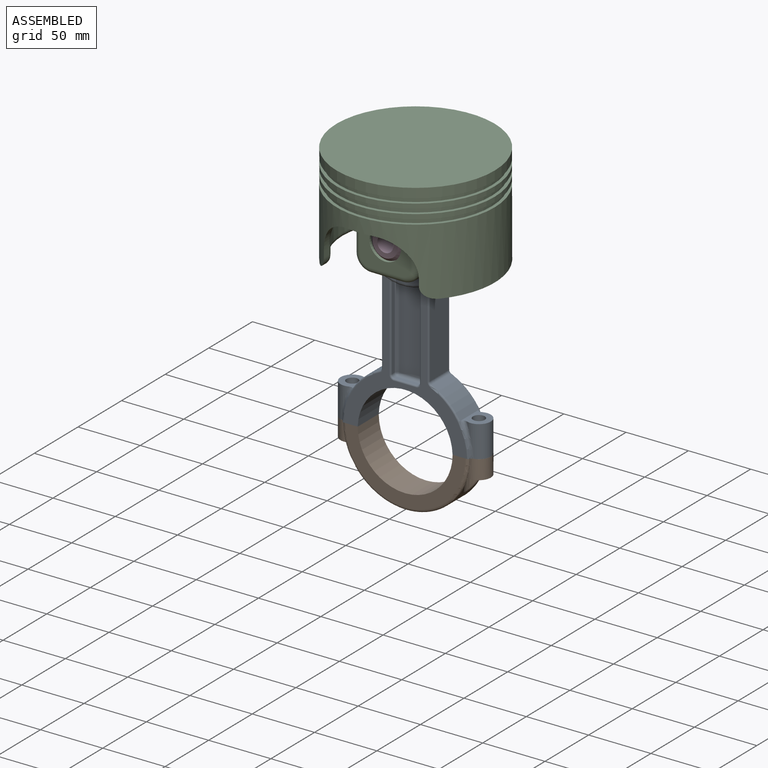
[diagram: assembled view]
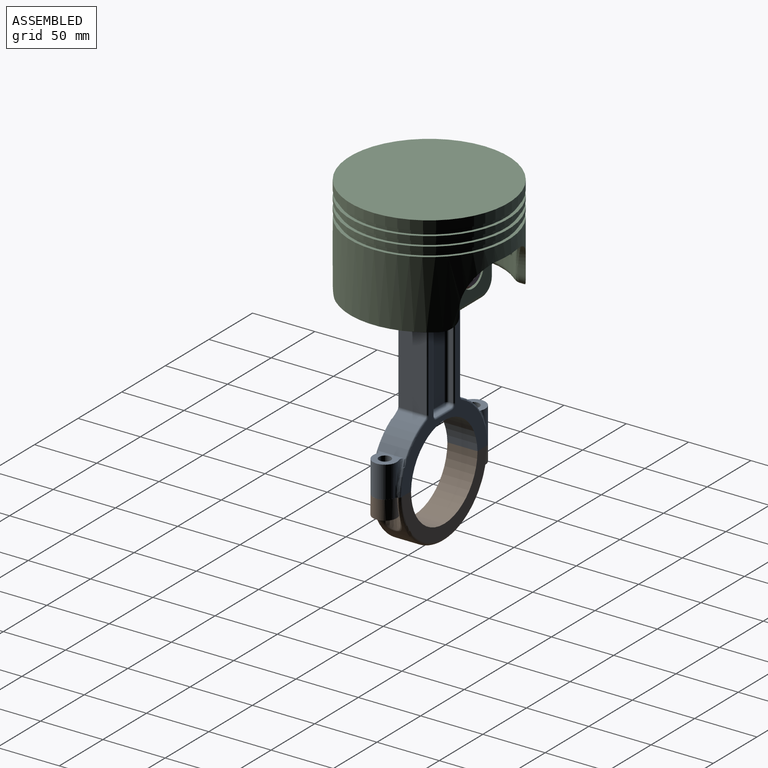
[diagram: assembled view, second angle]
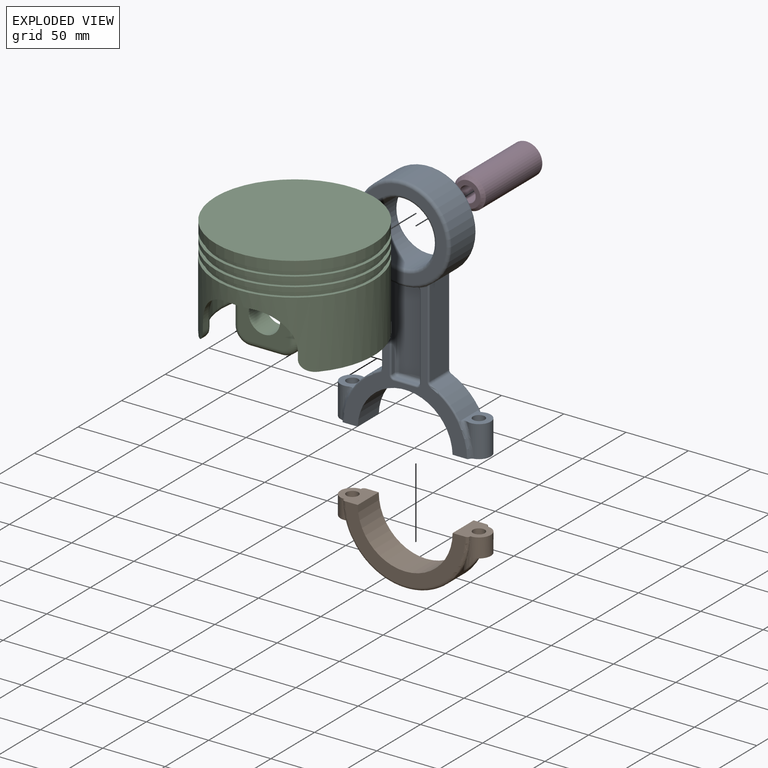
[diagram: exploded view]
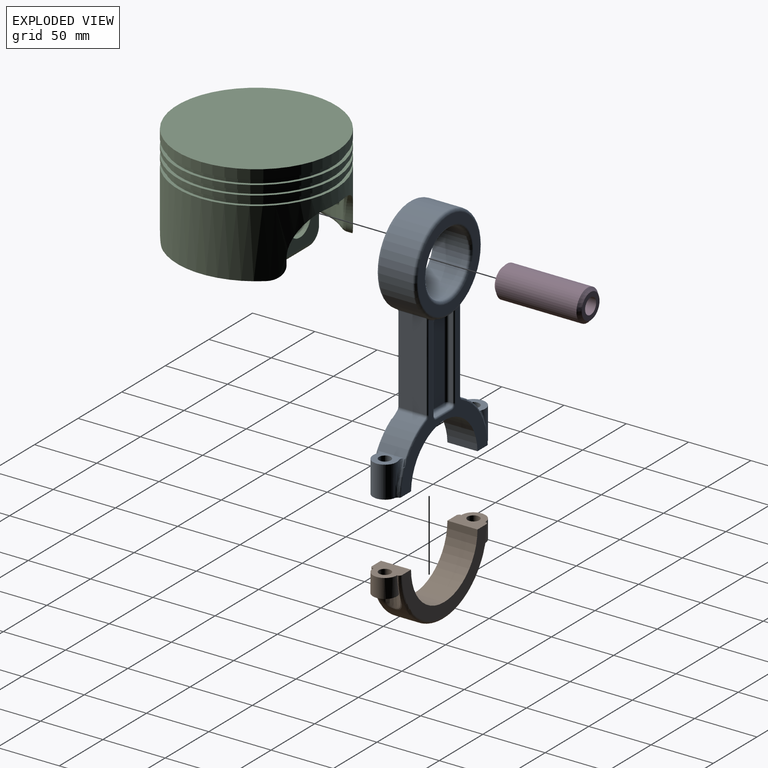
[diagram: exploded view, second angle]
ASSEMBLY  parts=4 mates=3
PART A: 101 faces, bbox 31.8x195.4x120.6 mm
  f0: plane 116.21x99.08mm, normal (-1,0,0), area 2089.9mm2, adj f3,f4,f9,f64,f65,f66,f67,f68
  f1: plane 116.21x99.08mm, normal (1,0,0), area 2089.9mm2, adj f3,f4,f9,f57,f58,f59,f60,f61
  f2: cylinder r=50.8mm len=22.78mm, axis (-1,0,0), area 665.3mm2, adj f15,f32,f71,f83
  f3: cylinder r=38.1mm len=76.17mm, axis (-1,0,0), area 2835.5mm2, adj f0,f1,f4,f9
  f4: plane 24.14x22.24mm, normal (0,1,0), area 378.7mm2, adj f0,f1,f3,f13,f14,f71,f83,f97
  f5: plane 69.92x21.63mm, normal (0,0,1), area 1512.3mm2, adj f32,f75,f79,f81
  f6: cylinder r=38.1mm len=76.2mm, axis (-1,0,0), area 5485.7mm2, adj f27,f29,f35,f41,f44,f50,f54,f56
  f7: plane 69.92x21.63mm, normal (0,0,-1), area 1512.3mm2, adj f31,f87,f91,f94
  f8: cylinder r=50.8mm len=22.78mm, axis (-1,0,0), area 665.3mm2, adj f10,f31,f84,f96
  f9: plane 24.14x22.24mm, normal (0,1,0), area 378.7mm2, adj f0,f1,f3,f11,f12,f84,f96,f99
  f10: plane 21.64x16.97mm, normal (0,-1,0), area 206.8mm2, adj f8,f11,f12,f99,f100
  f11: cylinder r=9.53mm len=25.4mm, axis (0,1,0), area 804.3mm2, adj f9,f10,f99,f100
  f12: cylinder r=4.76mm len=25.4mm, axis (0,1,0), area 759.7mm2, adj f9,f10
  f13: cylinder r=9.53mm len=25.4mm, axis (0,1,0), area 804.3mm2, adj f4,f15,f97,f98
  f14: cylinder r=4.76mm len=25.4mm, axis (0,1,0), area 759.7mm2, adj f4,f15
  f15: plane 21.64x16.97mm, normal (0,-1,0), area 206.8mm2, adj f2,f13,f14,f97,f98
  f16: plane 71.12x71.12mm, normal (-1,0,0), area 1520.1mm2, adj f27,f28
  f17: cylinder r=25.4mm len=50.8mm, axis (-1,0,0), area 4256.3mm2, adj f28,f30
  f18: plane 71.12x71.12mm, normal (1,0,0), area 1520.1mm2, adj f29,f30
  f19: plane 66.83x2.54mm, normal (0,0,-1), area 169.8mm2, adj f47,f53,f56,f58
  f20: plane 66.83x2.54mm, normal (0,0,1), area 169.8mm2, adj f45,f49,f50,f62
  f21: plane 17.78x2.54mm, normal (0,-1,0), area 45.2mm2, adj f45,f47,f48,f60
  f22: plane 66.83x17.78mm, normal (1,0,0), area 1176.6mm2, adj f48,f49,f53,f54
  f23: plane 66.83x2.54mm, normal (0,0,-1), area 169.8mm2, adj f38,f42,f44,f69
  f24: plane 17.78x2.54mm, normal (0,-1,0), area 45.2mm2, adj f33,f37,f38,f67
  f25: plane 66.83x2.54mm, normal (0,0,1), area 169.8mm2, adj f33,f35,f36,f65
  f26: plane 66.83x17.78mm, normal (-1,0,0), area 1176.6mm2, adj f36,f37,f41,f42
  f27: torus R=35.56mm, axis (1,0,0), area 932mm2, adj f6,f16
  f28: torus R=27.94mm, axis (1,0,0), area 659.9mm2, adj f16,f17
  f29: torus R=35.56mm, axis (1,0,0), area 932mm2, adj f6,f18
  f30: torus R=27.94mm, axis (1,0,0), area 659.9mm2, adj f17,f18
  f31: cylinder r=2.54mm len=21.63mm, axis (-1,0,0), area 63.4mm2, adj f7,f8,f85,f95
  f32: cylinder r=2.54mm len=21.63mm, axis (-1,0,0), area 63.4mm2, adj f2,f5,f73,f82
  f33: cylinder r=2.54mm len=2.54mm, axis (-1,0,0), area 10.1mm2, adj f24,f25,f34,f66
  f34: sphere r=2.54mm, area 6.5mm2, adj f33,f36,f37
  f35: cylinder r=2.54mm len=3.1mm, axis (-1,0,0), area 11.6mm2, adj f6,f25,f39,f64
  f36: cylinder r=2.54mm len=66.83mm, axis (0,-1,0), area 266.7mm2, adj f25,f26,f34,f39
  f37: cylinder r=2.54mm len=17.78mm, axis (0,0,-1), area 70.9mm2, adj f24,f26,f34,f40
  f38: cylinder r=2.54mm len=2.54mm, axis (1,0,0), area 10.1mm2, adj f23,f24,f40,f68
  f39: sphere r=2.54mm, area 11.2mm2, adj f35,f36,f41
  f40: sphere r=2.54mm, area 6.5mm2, adj f37,f38,f42
  f41: torus R=40.64mm, axis (-1,0,0), area 68.7mm2, adj f6,f26,f39,f43
  f42: cylinder r=2.54mm len=66.83mm, axis (0,1,0), area 266.7mm2, adj f23,f26,f40,f43
  f43: sphere r=2.54mm, area 16.2mm2, adj f41,f42,f44
  f44: cylinder r=2.54mm len=3.1mm, axis (-1,0,0), area 11.6mm2, adj f6,f23,f43,f70
  f45: cylinder r=2.54mm len=2.54mm, axis (1,0,0), area 10.1mm2, adj f20,f21,f46,f61
  f46: sphere r=2.54mm, area 13.8mm2, adj f45,f48,f49
  f47: cylinder r=2.54mm len=2.54mm, axis (-1,0,0), area 10.1mm2, adj f19,f21,f51,f59
  f48: cylinder r=2.54mm len=17.78mm, axis (0,0,1), area 70.9mm2, adj f21,f22,f46,f51
  f49: cylinder r=2.54mm len=66.83mm, axis (0,1,0), area 266.7mm2, adj f20,f22,f46,f52
  f50: cylinder r=2.54mm len=3.1mm, axis (-1,0,0), area 11.6mm2, adj f6,f20,f52,f63
  f51: sphere r=2.54mm, area 13.8mm2, adj f47,f48,f53
  f52: sphere r=2.54mm, area 11.2mm2, adj f49,f50,f54
  f53: cylinder r=2.54mm len=66.83mm, axis (0,-1,0), area 266.7mm2, adj f19,f22,f51,f55
  f54: torus R=40.64mm, axis (1,0,0), area 68.7mm2, adj f6,f22,f52,f55
  f55: sphere r=2.54mm, area 7.6mm2, adj f53,f54,f56
  f56: cylinder r=2.54mm len=3.1mm, axis (-1,0,0), area 11.6mm2, adj f6,f19,f55,f57
  f57: torus R=3.81mm, axis (1,0,0), area 6.9mm2, adj f1,f56,f58,f76
  f58: cylinder r=1.27mm len=66.83mm, axis (0,1,0), area 133.3mm2, adj f1,f19,f57,f59
  f59: torus R=3.81mm, axis (1,0,0), area 9.4mm2, adj f1,f47,f58,f60
  f60: cylinder r=1.27mm len=17.78mm, axis (0,0,-1), area 35.5mm2, adj f1,f21,f59,f61
  f61: torus R=3.81mm, axis (1,0,0), area 9.4mm2, adj f1,f45,f60,f62
  f62: cylinder r=1.27mm len=66.83mm, axis (0,-1,0), area 133.3mm2, adj f1,f20,f61,f63
  f63: torus R=3.81mm, axis (1,0,0), area 6.9mm2, adj f1,f50,f62,f90
  f64: torus R=3.81mm, axis (1,0,0), area 6.9mm2, adj f0,f35,f65,f86
  f65: cylinder r=1.27mm len=66.83mm, axis (0,-1,0), area 133.3mm2, adj f0,f25,f64,f66
  f66: torus R=3.81mm, axis (1,0,0), area 9.4mm2, adj f0,f33,f65,f67
  f67: cylinder r=1.27mm len=17.78mm, axis (0,0,-1), area 35.5mm2, adj f0,f24,f66,f68
  f68: torus R=3.81mm, axis (1,0,0), area 9.4mm2, adj f0,f38,f67,f69
  f69: cylinder r=1.27mm len=66.83mm, axis (0,1,0), area 133.3mm2, adj f0,f23,f68,f70
  f70: torus R=3.81mm, axis (1,0,0), area 6.9mm2, adj f0,f44,f69,f72
  f71: torus R=49.55mm, axis (1,0,0), area 102.8mm2, adj f0,f2,f4,f73,f97
  f72: bspline ~4.03x2.52mm, area 2.8mm2, adj f6,f70,f74
  f73: torus R=3.79mm, axis (1,0,0), area 6.8mm2, adj f0,f32,f71,f75
  f74: torus R=39.35mm, axis (1,0,0), area 12.1mm2, adj f0,f6,f72,f77
  f75: cylinder r=1.25mm len=69.92mm, axis (0,-1,0), area 135.9mm2, adj f0,f5,f73,f77
  f76: bspline ~3.68x2.52mm, area 2.6mm2, adj f6,f57,f78
  f77: bspline ~2.99x2.61mm, area 4.8mm2, adj f6,f74,f75,f79
  f78: torus R=39.35mm, axis (1,0,0), area 12.1mm2, adj f1,f6,f76,f80
  f79: cylinder r=1.25mm len=21.63mm, axis (-1,0,0), area 27.8mm2, adj f5,f6,f77,f80
  f80: bspline ~3x2.8mm, area 4.8mm2, adj f6,f78,f79,f81
  f81: cylinder r=1.25mm len=69.92mm, axis (0,1,0), area 135.9mm2, adj f1,f5,f80,f82
  f82: torus R=3.79mm, axis (1,0,0), area 6.8mm2, adj f1,f32,f81,f83
  f83: torus R=49.55mm, axis (1,0,0), area 102.8mm2, adj f1,f2,f4,f82,f98
  f84: torus R=49.55mm, axis (1,0,0), area 102.8mm2, adj f0,f8,f9,f85,f99
  f85: torus R=3.79mm, axis (1,0,0), area 6.8mm2, adj f0,f31,f84,f87
  f86: bspline ~3.68x2.52mm, area 2.6mm2, adj f6,f64,f88
  f87: cylinder r=1.25mm len=69.92mm, axis (0,1,0), area 135.9mm2, adj f0,f7,f85,f89
  f88: torus R=39.35mm, axis (1,0,0), area 12.1mm2, adj f0,f6,f86,f89
  f89: bspline ~3x2.8mm, area 4.8mm2, adj f6,f87,f88,f91
  f90: bspline ~4.03x2.52mm, area 2.8mm2, adj f6,f63,f92
  f91: cylinder r=1.25mm len=21.63mm, axis (-1,0,0), area 27.8mm2, adj f6,f7,f89,f93
  f92: torus R=39.35mm, axis (1,0,0), area 12.1mm2, adj f1,f6,f90,f93
  f93: bspline ~2.63x2.61mm, area 4.8mm2, adj f6,f91,f92,f94
  f94: cylinder r=1.25mm len=69.92mm, axis (0,-1,0), area 135.9mm2, adj f1,f7,f93,f95
  f95: torus R=3.79mm, axis (1,0,0), area 6.8mm2, adj f1,f31,f94,f96
  f96: torus R=49.55mm, axis (1,0,0), area 102.8mm2, adj f1,f8,f9,f95,f100
  f97: bspline ~29.73x9.57mm, area 88mm2, adj f4,f13,f15,f71
  f98: bspline ~30.45x9.91mm, area 88mm2, adj f4,f13,f15,f83
  f99: bspline ~29.73x9.57mm, area 88mm2, adj f9,f10,f11,f84
  f100: bspline ~30.61x10mm, area 88mm2, adj f9,f10,f11,f96
PART B: 22 faces, bbox 24.1x120.7x59.6 mm
  f0: cylinder r=4.76mm len=9.52mm, axis (0,0,-1), area 216.8mm2, adj f3,f17
  f1: cylinder r=50.8mm len=90.11mm, axis (-1,0,0), area 1877mm2, adj f18,f19,f20,f21
  f2: cylinder r=4.76mm len=9.52mm, axis (0,0,-1), area 216.8mm2, adj f5,f11
  f3: plane 24.14x22.23mm, normal (0,0,-1), area 374.7mm2, adj f0,f4,f6,f7,f14,f18,f19,f20
  f4: cylinder r=38.1mm len=76.2mm, axis (-1,0,0), area 2888.2mm2, adj f3,f5,f6,f7
  f5: plane 24.14x22.23mm, normal (0,0,-1), area 374.7mm2, adj f2,f4,f6,f7,f9,f18,f19,f21
  f6: plane 96.52x48.26mm, normal (1,0,0), area 1378.2mm2, adj f3,f4,f5,f19
  f7: plane 96.52x48.26mm, normal (-1,0,0), area 1378.2mm2, adj f3,f4,f5,f18
  f8: plane 19.05x19.05mm, normal (0,0,1), area 131.1mm2, adj f9,f10,f12
  f9: cylinder r=9.53mm len=19.05mm, axis (0,0,-1), area 525.1mm2, adj f5,f8,f21
  f10: cone r=9.53mm half-angle=3deg, axis (0,0,1), area 232.2mm2, adj f8,f21
  f11: plane 14x14mm, normal (0,0,1), area 82.8mm2, adj f2,f12
  f12: cylinder r=7mm len=14mm, axis (0,0,1), area 351.9mm2, adj f8,f11
  f13: plane 19.05x19.05mm, normal (0,0,1), area 131.1mm2, adj f14,f15,f16
  f14: cylinder r=9.53mm len=19.05mm, axis (0,0,-1), area 525.1mm2, adj f3,f13,f20
  f15: cone r=9.53mm half-angle=3deg, axis (0,0,1), area 164.7mm2, adj f13,f20
  f16: cylinder r=7mm len=14mm, axis (0,0,1), area 351.9mm2, adj f13,f17
  f17: plane 14x14mm, normal (0,0,1), area 82.8mm2, adj f0,f16
  f18: torus R=48.26mm, axis (1,0,0), area 591.1mm2, adj f1,f3,f5,f7,f20,f21
  f19: torus R=48.26mm, axis (1,0,0), area 591.1mm2, adj f1,f3,f5,f6,f20,f21
  f20: bspline ~35.97x22.49mm, area 124mm2, adj f1,f3,f14,f15,f18,f19
  f21: bspline ~35.44x22.5mm, area 124mm2, adj f1,f5,f9,f10,f18,f19
PART C: 85 faces, bbox 142.2x133.2x83.5 mm
  f0: plane 104.3x104.3mm, normal (0,0,-1), area 6656.5mm2, adj f28,f29,f30,f31,f33,f34,f35,f36
  f1: plane 82.91x15.4mm, normal (0,0,-1), area 118.5mm2, adj f17,f44,f46,f68
  f2: cylinder r=63.5mm len=127mm, axis (0,0,-1), area 1520.1mm2, adj f11,f12
  f3: cylinder r=63.5mm len=127mm, axis (0,0,-1), area 1520.1mm2, adj f6,f9
  f4: plane 127x127mm, normal (0,0,-1), area 993.1mm2, adj f5,f8
  f5: cylinder r=60.96mm len=121.92mm, axis (0,0,1), area 1459.3mm2, adj f4,f6
  f6: plane 127x127mm, normal (0,0,1), area 993.1mm2, adj f3,f5
  f7: plane 127x127mm, normal (0,0,1), area 12667.7mm2, adj f8
  f8: cylinder r=63.5mm len=127mm, axis (0,0,-1), area 3040.2mm2, adj f4,f7
  f9: plane 127x127mm, normal (0,0,-1), area 993.1mm2, adj f3,f10
  f10: cylinder r=60.96mm len=121.92mm, axis (0,0,1), area 1459.3mm2, adj f9,f11
  f11: plane 127x127mm, normal (0,0,1), area 993.1mm2, adj f2,f10
  f12: plane 127x127mm, normal (0,0,-1), area 993.1mm2, adj f2,f13
  f13: cylinder r=60.96mm len=121.92mm, axis (0,0,1), area 1459.3mm2, adj f12,f14
  f14: plane 127x127mm, normal (0,0,1), area 993.1mm2, adj f13,f17
  f15: cylinder r=57.15mm len=114.3mm, axis (0,0,-1), area 12248.3mm2, adj f68,f69,f70,f71,f72,f73,f74,f75
  f16: plane 82.91x15.4mm, normal (0,0,-1), area 118.5mm2, adj f17,f45,f47,f83
  f17: cylinder r=63.5mm len=127mm, axis (0,0,-1), area 15403.6mm2, adj f1,f14,f16,f18,f19,f20,f21,f22
  f18: plane 6.02x5.18mm, normal (1,0,0), area 31.2mm2, adj f17,f27,f47,f80
  f19: plane 20.2x2.18mm, normal (0,0,-1), area 27.4mm2, adj f17,f26,f27,f76
  f20: plane 6.02x5.18mm, normal (-1,0,0), area 31.2mm2, adj f17,f26,f46,f72
  f21: plane 6.02x5.18mm, normal (-1,0,0), area 31.2mm2, adj f17,f24,f44,f71
  f22: plane 20.2x2.18mm, normal (0,0,-1), area 27.4mm2, adj f17,f24,f25,f75
  f23: plane 6.02x5.18mm, normal (1,0,0), area 31.2mm2, adj f17,f25,f45,f79
  f24: cylinder r=28mm len=28mm, axis (0,1,0), area 162.4mm2, adj f17,f21,f22,f73
  f25: cylinder r=28mm len=28mm, axis (0,-1,0), area 162.4mm2, adj f17,f22,f23,f77
  f26: cylinder r=28mm len=28mm, axis (0,1,0), area 162.4mm2, adj f17,f19,f20,f74
  f27: cylinder r=28mm len=28mm, axis (0,-1,0), area 162.4mm2, adj f17,f18,f19,f78
  f28: plane 58.5x40.8mm, normal (0,-1,0), area 1854.6mm2, adj f0,f39,f53,f54,f55,f56,f57
  f29: plane 50.8x9mm, normal (-1,0,0), area 457.2mm2, adj f0,f42,f52,f57
  f30: plane 58.5x40.8mm, normal (0,1,0), area 1854.6mm2, adj f0,f39,f48,f49,f50,f51,f52
  f31: plane 50.8x9mm, normal (1,0,0), area 457.2mm2, adj f0,f43,f48,f53
  f32: plane 25.4x9mm, normal (0,0,-1), area 228.6mm2, adj f42,f43,f50,f55
  f33: plane 58.5x40.8mm, normal (0,1,0), area 1854.6mm2, adj f0,f38,f58,f59,f60,f61,f62
  f34: plane 50.8x9mm, normal (1,0,0), area 457.2mm2, adj f0,f41,f58,f63
  f35: plane 58.5x40.8mm, normal (0,-1,0), area 1854.6mm2, adj f0,f38,f63,f64,f65,f66,f67
  f36: plane 50.8x9mm, normal (-1,0,0), area 457.2mm2, adj f0,f40,f62,f67
  f37: plane 25.4x9mm, normal (0,0,-1), area 228.6mm2, adj f40,f41,f60,f65
  f38: cylinder r=12.7mm len=25.4mm, axis (0,-1,0), area 1516.1mm2, adj f33,f35
  f39: cylinder r=12.7mm len=25.4mm, axis (0,-1,0), area 1516.1mm2, adj f28,f30
  f40: cylinder r=12.7mm len=12.7mm, axis (0,-1,0), area 179.5mm2, adj f36,f37,f61,f66
  f41: cylinder r=12.7mm len=12.7mm, axis (0,1,0), area 179.5mm2, adj f34,f37,f59,f64
  f42: cylinder r=12.7mm len=12.7mm, axis (0,-1,0), area 179.5mm2, adj f29,f32,f51,f56
  f43: cylinder r=12.7mm len=12.7mm, axis (0,1,0), area 179.5mm2, adj f31,f32,f49,f54
  f44: cylinder r=10mm len=11.44mm, axis (0,-1,0), area 75.1mm2, adj f1,f17,f21,f69
  f45: cylinder r=10mm len=11.44mm, axis (0,1,0), area 75.1mm2, adj f16,f17,f23,f81
  f46: cylinder r=10mm len=11.44mm, axis (0,-1,0), area 75.1mm2, adj f1,f17,f20,f70
  f47: cylinder r=10mm len=11.44mm, axis (0,1,0), area 75.1mm2, adj f16,f17,f18,f82
  f48: cylinder r=5mm len=50.8mm, axis (0,0,-1), area 399mm2, adj f0,f30,f31,f49
  f49: torus R=7.7mm, axis (0,-1,0), area 134.3mm2, adj f30,f43,f48,f50
  f50: cylinder r=5mm len=25.4mm, axis (-1,0,0), area 199.5mm2, adj f30,f32,f49,f51
  f51: torus R=7.7mm, axis (0,-1,0), area 134.3mm2, adj f30,f42,f50,f52
  f52: cylinder r=5mm len=50.8mm, axis (0,0,1), area 399mm2, adj f0,f29,f30,f51
  f53: cylinder r=5mm len=50.8mm, axis (0,0,1), area 399mm2, adj f0,f28,f31,f54
  f54: torus R=7.7mm, axis (0,-1,0), area 134.3mm2, adj f28,f43,f53,f55
  f55: cylinder r=5mm len=25.4mm, axis (1,0,0), area 199.5mm2, adj f28,f32,f54,f56
  f56: torus R=7.7mm, axis (0,-1,0), area 134.3mm2, adj f28,f42,f55,f57
  f57: cylinder r=5mm len=50.8mm, axis (0,0,-1), area 399mm2, adj f0,f28,f29,f56
  f58: cylinder r=5mm len=50.8mm, axis (0,0,1), area 399mm2, adj f0,f33,f34,f59
  f59: torus R=7.7mm, axis (0,-1,0), area 134.3mm2, adj f33,f41,f58,f60
  f60: cylinder r=5mm len=25.4mm, axis (-1,0,0), area 199.5mm2, adj f33,f37,f59,f61
  f61: torus R=7.7mm, axis (0,-1,0), area 134.3mm2, adj f33,f40,f60,f62
  f62: cylinder r=5mm len=50.8mm, axis (0,0,-1), area 399mm2, adj f0,f33,f36,f61
  f63: cylinder r=5mm len=50.8mm, axis (0,0,-1), area 399mm2, adj f0,f34,f35,f64
  f64: torus R=7.7mm, axis (0,-1,0), area 134.3mm2, adj f35,f41,f63,f65
  f65: cylinder r=5mm len=25.4mm, axis (1,0,0), area 199.5mm2, adj f35,f37,f64,f66
  f66: torus R=7.7mm, axis (0,-1,0), area 134.3mm2, adj f35,f40,f65,f67
  f67: cylinder r=5mm len=50.8mm, axis (0,0,1), area 399mm2, adj f0,f35,f36,f66
  f68: torus R=62.15mm, axis (0,0,1), area 635.2mm2, adj f1,f15,f69,f70
  f69: bspline ~12.39x11.8mm, area 72.5mm2, adj f15,f44,f68,f71
  f70: bspline ~12.39x11.8mm, area 72.5mm2, adj f15,f46,f68,f72
  f71: cylinder r=5mm len=5.18mm, axis (0,0,-1), area 20.8mm2, adj f15,f21,f69,f73
  f72: cylinder r=5mm len=5.18mm, axis (0,0,-1), area 20.8mm2, adj f15,f20,f70,f74
  f73: bspline ~36.14x33.41mm, area 287.9mm2, adj f15,f24,f71,f75
  f74: bspline ~36.14x33.41mm, area 287.9mm2, adj f15,f26,f72,f76
  f75: torus R=62.15mm, axis (0,0,1), area 151.2mm2, adj f15,f22,f73,f77
  f76: torus R=62.15mm, axis (0,0,1), area 151.2mm2, adj f15,f19,f74,f78
  f77: bspline ~36.14x33.41mm, area 287.9mm2, adj f15,f25,f75,f79
  f78: bspline ~36.14x33.41mm, area 287.9mm2, adj f15,f27,f76,f80
  f79: cylinder r=5mm len=5.18mm, axis (0,0,-1), area 20.8mm2, adj f15,f23,f77,f81
  f80: cylinder r=5mm len=5.18mm, axis (0,0,-1), area 20.8mm2, adj f15,f18,f78,f82
  f81: bspline ~12.39x11.8mm, area 72.5mm2, adj f15,f45,f79,f83
  f82: bspline ~12.39x11.8mm, area 72.5mm2, adj f15,f47,f80,f83
  f83: torus R=62.15mm, axis (0,0,1), area 635.2mm2, adj f15,f16,f81,f82
  f84: torus R=52.15mm, axis (0,0,1), area 2730.6mm2, adj f0,f15
PART D: 6 faces, bbox 25.4x25.4x69.9 mm
  f0: cylinder r=6.35mm len=69.85mm, axis (0,0,-1), area 2786.9mm2, adj f2,f3
  f1: cylinder r=12.7mm len=64.85mm, axis (0,0,-1), area 5174.8mm2, adj f4,f5
  f2: plane 20.4x20.4mm, normal (0,0,1), area 200.2mm2, adj f0,f5
  f3: plane 20.4x20.4mm, normal (0,0,-1), area 200.2mm2, adj f0,f4
  f4: cone r=12.7mm half-angle=45deg, axis (0,0,1), area 254.4mm2, adj f1,f3
  f5: cone r=10.2mm half-angle=45deg, axis (0,0,-1), area 254.4mm2, adj f1,f2
PLACE A rot(axis=(-0.58,0.58,-0.58),120deg) t=(26.72,-179.36,-124.42)mm
PLACE B rot(axis=(0.71,0.71,0),180deg) t=(26.73,-179.36,-199.53)mm
PLACE C t=(26.72,-179.36,8.88)mm
PLACE D rot(axis=(-1,0,0),90deg) t=(26.72,-179.31,-48.22)mm
MATE pin_slot D.f1 <-> C.f38  axis (0,-1,0) through (26.72,-214.23,-48.22)mm
MATE fastened B.f0 <-> A.f11  axis (0,0,1) through (-24.07,-179.36,-199.53)mm
MATE revolute A.f6 <-> C.f38  axis (0,-1,0) through (26.72,-195.23,-48.22)mm
